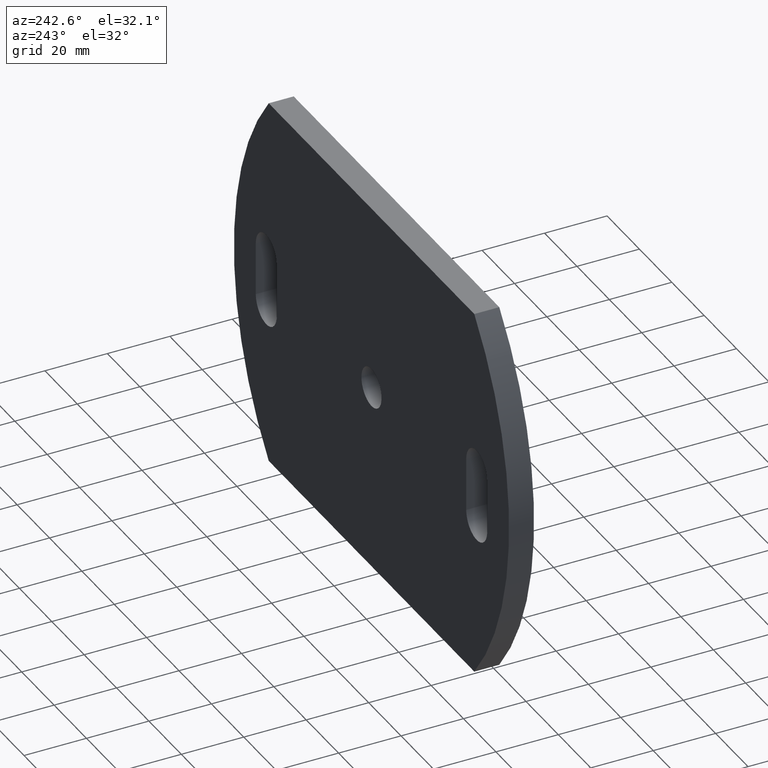
[diagram: clean part render]
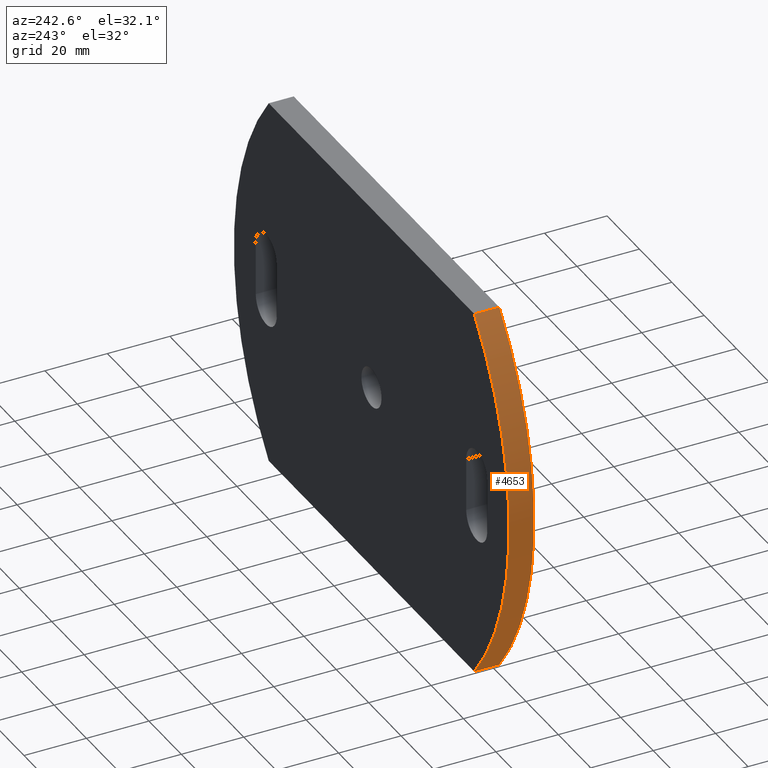
[diagram: same view with one face highlighted and labeled with its STEP entity id]
A machine part, auxiliary view. The second image highlights one B-rep face of the part: STEP entity #4653.
In plain terms, the highlighted cylindrical surface (partial cylindrical patch) has radius 94.4709 mm, axis along (-0, -1, -0).
Its self-contained STEP definition (entity closure, byte-faithful):
#77 = VERTEX_POINT ( 'NONE', #6036 ) ;
#166 = CARTESIAN_POINT ( 'NONE',  ( -63.50000000000001400, 8.000000000000000000, 59.99999999999997900 ) ) ;
#511 = ORIENTED_EDGE ( 'NONE', *, *, #1348, .F. ) ;
#559 = CARTESIAN_POINT ( 'NONE',  ( 9.470930232558114200, 8.000000000000000000, 3.469446951953614200E-015 ) ) ;
#711 = DIRECTION ( 'NONE',  ( 0.0000000000000000000, 1.000000000000000000, 0.0000000000000000000 ) ) ;
#1001 = AXIS2_PLACEMENT_3D ( 'NONE', #559, #7409, #9714 ) ;
#1128 = EDGE_CURVE ( 'NONE', #6084, #9875, #7521, .T. ) ;
#1306 = CIRCLE ( 'NONE', #4798, 94.47093023255811800 ) ;
#1348 = EDGE_CURVE ( 'NONE', #9875, #77, #1394, .T. ) ;
#1394 = LINE ( 'NONE', #166, #1783 ) ;
#1783 = VECTOR ( 'NONE', #5198, 1000.000000000000000 ) ;
#1795 = EDGE_CURVE ( 'NONE', #6084, #8106, #5085, .T. ) ;
#2553 = CYLINDRICAL_SURFACE ( 'NONE', #1001, 94.47093023255811800 ) ;
#2696 = CARTESIAN_POINT ( 'NONE',  ( -63.49999999999995700, 8.000000000000000000, -60.00000000000004300 ) ) ;
#2875 = VECTOR ( 'NONE', #6884, 1000.000000000000000 ) ;
#4653 = ADVANCED_FACE ( 'NONE', ( #6539 ), #2553, .T. ) ;
#4798 = AXIS2_PLACEMENT_3D ( 'NONE', #8523, #9354, #5135 ) ;
#4915 = ORIENTED_EDGE ( 'NONE', *, *, #5533, .T. ) ;
#5085 = LINE ( 'NONE', #2696, #2875 ) ;
#5135 = DIRECTION ( 'NONE',  ( 0.0000000000000000000, 0.0000000000000000000, 1.000000000000000000 ) ) ;
#5198 = DIRECTION ( 'NONE',  ( -0.0000000000000000000, -1.000000000000000000, -0.0000000000000000000 ) ) ;
#5533 = EDGE_CURVE ( 'NONE', #8106, #77, #1306, .T. ) ;
#5554 = CARTESIAN_POINT ( 'NONE',  ( -63.49999999999995700, 0.0000000000000000000, -60.00000000000004300 ) ) ;
#6036 = CARTESIAN_POINT ( 'NONE',  ( -63.50000000000001400, 0.0000000000000000000, 59.99999999999997900 ) ) ;
#6084 = VERTEX_POINT ( 'NONE', #7989 ) ;
#6539 = FACE_OUTER_BOUND ( 'NONE', #7078, .T. ) ;
#6884 = DIRECTION ( 'NONE',  ( -0.0000000000000000000, -1.000000000000000000, -0.0000000000000000000 ) ) ;
#7078 = EDGE_LOOP ( 'NONE', ( #4915, #511, #8130, #10856 ) ) ;
#7409 = DIRECTION ( 'NONE',  ( -0.0000000000000000000, -1.000000000000000000, -0.0000000000000000000 ) ) ;
#7521 = CIRCLE ( 'NONE', #8422, 94.47093023255811800 ) ;
#7989 = CARTESIAN_POINT ( 'NONE',  ( -63.49999999999995700, 8.000000000000000000, -60.00000000000004300 ) ) ;
#8106 = VERTEX_POINT ( 'NONE', #5554 ) ;
#8130 = ORIENTED_EDGE ( 'NONE', *, *, #1128, .F. ) ;
#8362 = CARTESIAN_POINT ( 'NONE',  ( -63.50000000000001400, 8.000000000000000000, 59.99999999999997900 ) ) ;
#8422 = AXIS2_PLACEMENT_3D ( 'NONE', #10786, #711, #10820 ) ;
#8523 = CARTESIAN_POINT ( 'NONE',  ( 9.470930232558114200, 0.0000000000000000000, 3.469446951953614200E-015 ) ) ;
#9354 = DIRECTION ( 'NONE',  ( 0.0000000000000000000, 1.000000000000000000, 0.0000000000000000000 ) ) ;
#9714 = DIRECTION ( 'NONE',  ( 0.0000000000000000000, 0.0000000000000000000, -1.000000000000000000 ) ) ;
#9875 = VERTEX_POINT ( 'NONE', #8362 ) ;
#10786 = CARTESIAN_POINT ( 'NONE',  ( 9.470930232558114200, 8.000000000000000000, 3.469446951953614200E-015 ) ) ;
#10820 = DIRECTION ( 'NONE',  ( 0.0000000000000000000, 0.0000000000000000000, 1.000000000000000000 ) ) ;
#10856 = ORIENTED_EDGE ( 'NONE', *, *, #1795, .T. ) ;